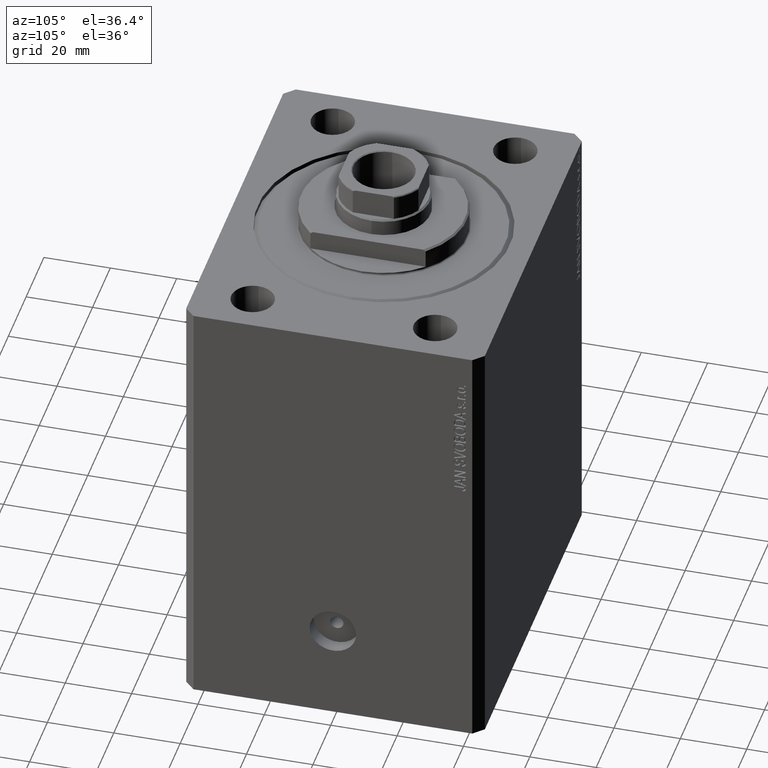
[diagram: clean part render]
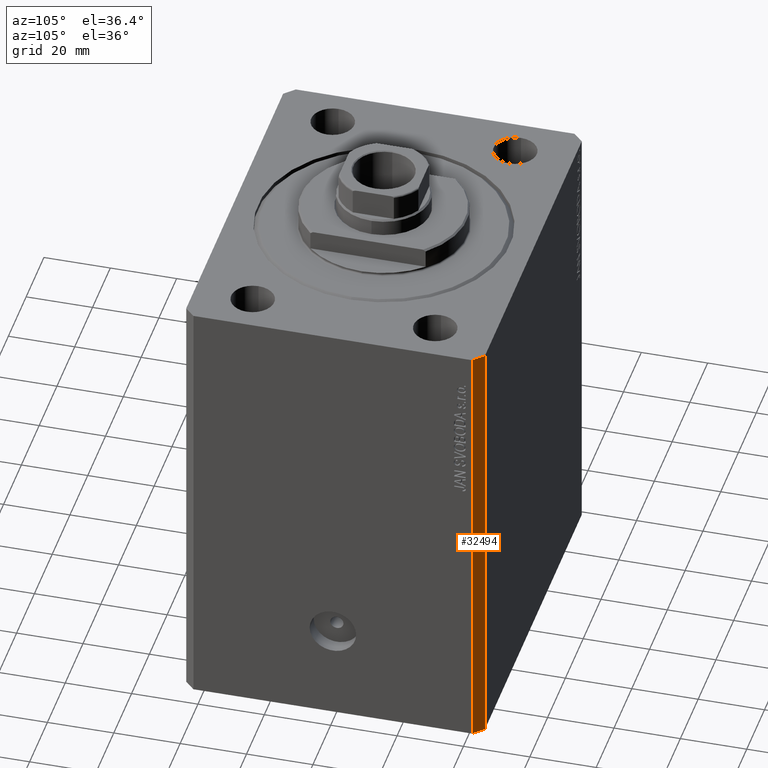
[diagram: same view with one face highlighted and labeled with its STEP entity id]
A machine part, auxiliary view. The second image highlights one B-rep face of the part: STEP entity #32494.
In plain terms, the highlighted planar face has unit normal (0.7071, 0.7071, 0).
Its self-contained STEP definition (entity closure, byte-faithful):
#323 = LINE ( 'NONE', #17704, #32034 ) ;
#4235 = EDGE_CURVE ( 'NONE', #12060, #12540, #35301, .T. ) ;
#5086 = CARTESIAN_POINT ( 'NONE',  ( 57.50000000000055422, 41.99999999999997868, -135.0000000000000000 ) ) ;
#5499 = DIRECTION ( 'NONE',  ( -0.7071067811865369146, 0.7071067811865581199, 0.000000000000000000 ) ) ;
#6913 = VECTOR ( 'NONE', #19963, 1000.000000000000000 ) ;
#8677 = EDGE_CURVE ( 'NONE', #18448, #16682, #24246, .T. ) ;
#9544 = CARTESIAN_POINT ( 'NONE',  ( 57.50000000000055422, 41.99999999999997868, 0.000000000000000000 ) ) ;
#10238 = LINE ( 'NONE', #30755, #6913 ) ;
#12060 = VERTEX_POINT ( 'NONE', #42643 ) ;
#12540 = VERTEX_POINT ( 'NONE', #9544 ) ;
#12712 = CARTESIAN_POINT ( 'NONE',  ( 57.50000000000055422, 41.99999999999997868, -135.0000000000000000 ) ) ;
#15246 = DIRECTION ( 'NONE',  ( 0.000000000000000000, 0.000000000000000000, 1.000000000000000000 ) ) ;
#15434 = FACE_OUTER_BOUND ( 'NONE', #38892, .T. ) ;
#16682 = VERTEX_POINT ( 'NONE', #18667 ) ;
#17704 = CARTESIAN_POINT ( 'NONE',  ( 57.50000000000055422, 41.99999999999997868, 0.000000000000000000 ) ) ;
#18448 = VERTEX_POINT ( 'NONE', #20304 ) ;
#18667 = CARTESIAN_POINT ( 'NONE',  ( 54.50000000000059686, 45.00000000000002842, 0.000000000000000000 ) ) ;
#19963 = DIRECTION ( 'NONE',  ( -0.7071067811865369146, 0.7071067811865581199, 0.000000000000000000 ) ) ;
#20304 = CARTESIAN_POINT ( 'NONE',  ( 54.50000000000059686, 45.00000000000002842, -135.0000000000000000 ) ) ;
#20763 = VECTOR ( 'NONE', #21078, 1000.000000000000000 ) ;
#21078 = DIRECTION ( 'NONE',  ( 0.000000000000000000, 0.000000000000000000, 1.000000000000000000 ) ) ;
#21665 = ORIENTED_EDGE ( 'NONE', *, *, #8677, .T. ) ;
#23388 = ORIENTED_EDGE ( 'NONE', *, *, #42867, .T. ) ;
#24246 = LINE ( 'NONE', #25132, #20763 ) ;
#24921 = ORIENTED_EDGE ( 'NONE', *, *, #38254, .F. ) ;
#25132 = CARTESIAN_POINT ( 'NONE',  ( 54.50000000000059686, 45.00000000000002842, -135.0000000000000000 ) ) ;
#26464 = DIRECTION ( 'NONE',  ( 0.7071067811865581199, 0.7071067811865369146, -0.000000000000000000 ) ) ;
#27135 = VECTOR ( 'NONE', #15246, 1000.000000000000000 ) ;
#27851 = DIRECTION ( 'NONE',  ( -0.7071067811865369146, 0.7071067811865581199, 0.000000000000000000 ) ) ;
#30755 = CARTESIAN_POINT ( 'NONE',  ( 57.50000000000055422, 41.99999999999997868, -135.0000000000000000 ) ) ;
#32034 = VECTOR ( 'NONE', #27851, 1000.000000000000000 ) ;
#32494 = ADVANCED_FACE ( 'NONE', ( #15434 ), #43596, .T. ) ;
#34765 = AXIS2_PLACEMENT_3D ( 'NONE', #12712, #26464, #5499 ) ;
#35301 = LINE ( 'NONE', #5086, #27135 ) ;
#38254 = EDGE_CURVE ( 'NONE', #12540, #16682, #323, .T. ) ;
#38892 = EDGE_LOOP ( 'NONE', ( #24921, #42109, #23388, #21665 ) ) ;
#42109 = ORIENTED_EDGE ( 'NONE', *, *, #4235, .F. ) ;
#42643 = CARTESIAN_POINT ( 'NONE',  ( 57.50000000000055422, 41.99999999999997868, -135.0000000000000000 ) ) ;
#42867 = EDGE_CURVE ( 'NONE', #12060, #18448, #10238, .T. ) ;
#43596 = PLANE ( 'NONE',  #34765 ) ;